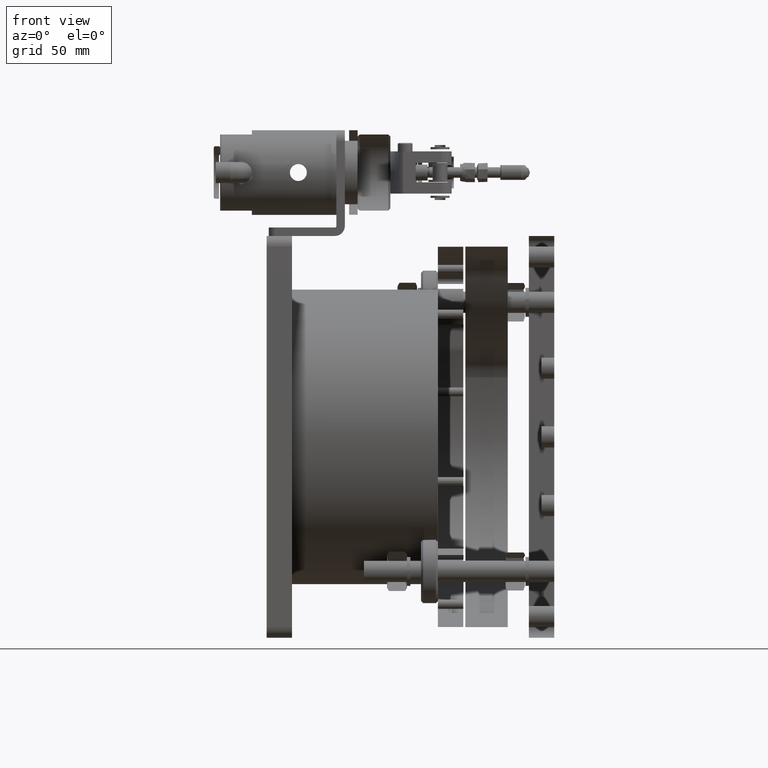
[diagram: clean part render]
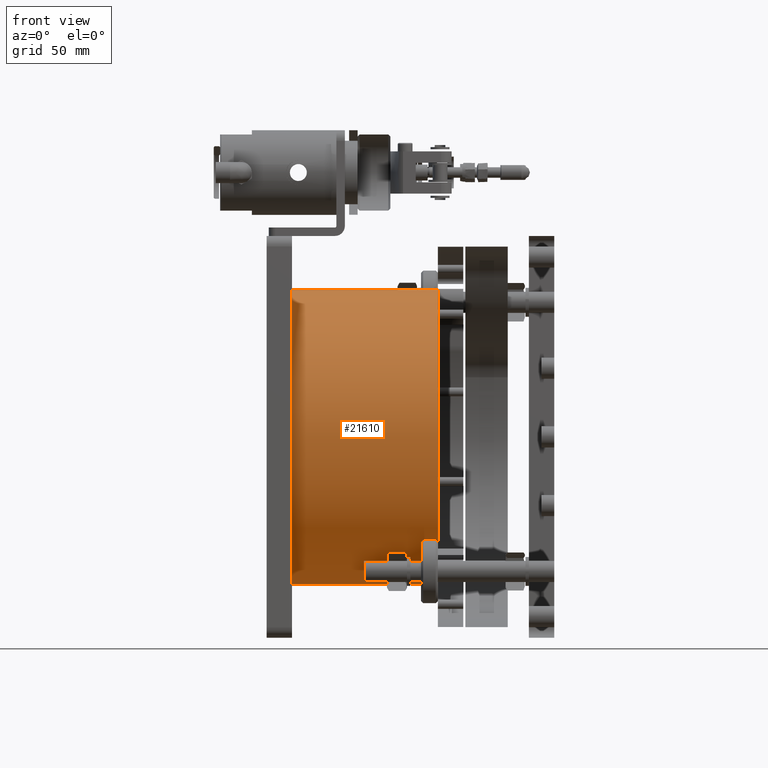
[diagram: same view with one face highlighted and labeled with its STEP entity id]
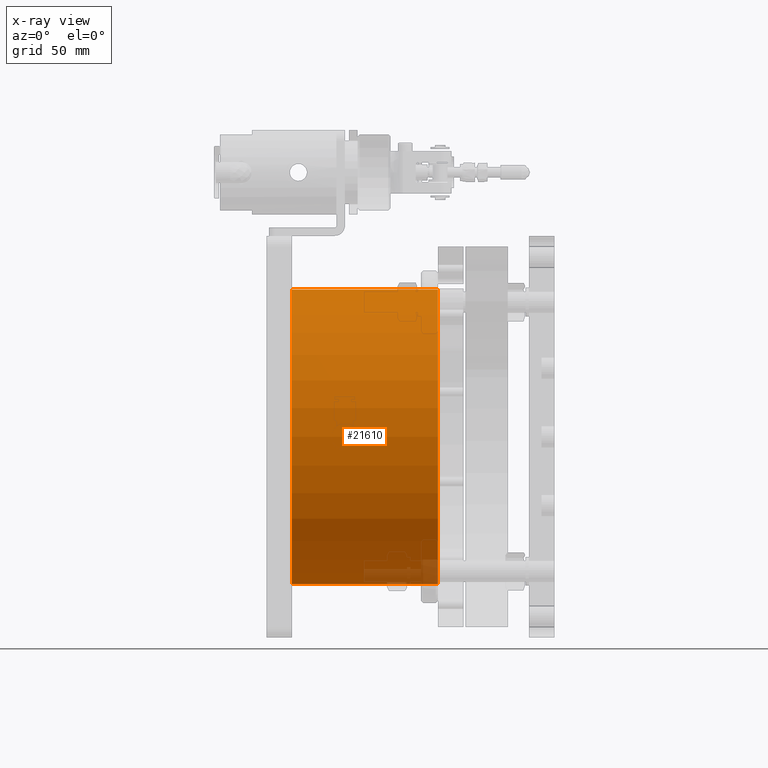
[diagram: x-ray of the same camera — body ghosted, the highlighted face saturated]
A machine part, front view. The second image highlights one B-rep face of the part: STEP entity #21610.
The next image is the same camera in x-ray: the body ghosted, the highlighted face saturated — about 3% of this face is hidden behind the body in this view.
In plain terms, the highlighted cylindrical surface (bore or boss wall) has radius 69.65 mm, axis along (-1, 0, 0).
Its self-contained STEP definition (entity closure, byte-faithful):
#166 = EDGE_LOOP ( 'NONE', ( #16174, #18696 ) ) ;
#364 = CARTESIAN_POINT ( 'NONE',  ( 458.7107269345173677, 69.56268206913080121, 606.5430019710622673 ) ) ;
#573 = CARTESIAN_POINT ( 'NONE',  ( 461.7705082004205792, 69.54107988252708594, 606.1364588037201884 ) ) ;
#628 = DIRECTION ( 'NONE',  ( -1.000000000000000000, 3.081487911019162039E-33, 3.473364927200044862E-17 ) ) ;
#1182 = EDGE_CURVE ( 'NONE', #5997, #10519, #6659, .T. ) ;
#1188 = CARTESIAN_POINT ( 'NONE',  ( 461.7759604881968016, 69.54116265385403040, 613.9329564411685851 ) ) ;
#1298 = CARTESIAN_POINT ( 'NONE',  ( 464.2249030222703254, 69.62244636472759396, 612.0546485525584330 ) ) ;
#1804 = CARTESIAN_POINT ( 'NONE',  ( 464.7315486138145957, 69.65000000000003411, 610.0354284903502275 ) ) ;
#1906 = CARTESIAN_POINT ( 'NONE',  ( 456.7315486138145957, 69.65000000000003411, 609.5046093735677459 ) ) ;
#3058 = CARTESIAN_POINT ( 'NONE',  ( 456.7315486138146525, 69.65000000000006253, 610.5673597601049778 ) ) ;
#3160 = CARTESIAN_POINT ( 'NONE',  ( 504.7315486138145388, 1.366094737331735902E-14, 610.0354284903502275 ) ) ;
#3269 = CARTESIAN_POINT ( 'NONE',  ( 459.6925750916799416, 69.54108337551660668, 613.9343222146358130 ) ) ;
#3525 = ORIENTED_EDGE ( 'NONE', *, *, #14872, .T. ) ;
#3671 = CARTESIAN_POINT ( 'NONE',  ( 464.7315486138145957, 69.65000000000006253, 609.5050446476731167 ) ) ;
#4247 = DIRECTION ( 'NONE',  ( 0.000000000000000000, 0.000000000000000000, 1.000000000000000000 ) ) ;
#4462 = B_SPLINE_CURVE_WITH_KNOTS ( 'NONE', 3,
 ( #12115, #1906, #17004, #5426, #19094, #13665, #364, #20418, #18878, #7104, #573, #12219, #8672, #5229, #7330, #10661, #3671, #1804 ),
 .UNSPECIFIED., .F., .F.,
 ( 4, 2, 2, 2, 2, 2, 2, 2, 4 ),
 ( 0.000000000000000000, 0.1250000000000000000, 0.2500000000000000000, 0.3750000000000000000, 0.5000000000000000000, 0.6250000000000000000, 0.7500000000000000000, 0.8750000000000000000, 1.000000000000000000 ),
 .UNSPECIFIED. ) ;
#4503 = CARTESIAN_POINT ( 'NONE',  ( 458.7129614740324541, 69.56261419288493641, 613.5291880650295298 ) ) ;
#4708 = CARTESIAN_POINT ( 'NONE',  ( 456.7315486138145957, 69.65000000000003411, 610.0354284903502275 ) ) ;
#5229 = CARTESIAN_POINT ( 'NONE',  ( 463.9347272166014022, 69.60777354016227036, 607.5815818212807926 ) ) ;
#5426 = CARTESIAN_POINT ( 'NONE',  ( 457.2395689996089345, 69.62237610346046779, 608.0137320949758077 ) ) ;
#5997 = VERTEX_POINT ( 'NONE', #20456 ) ;
#6123 = CARTESIAN_POINT ( 'NONE',  ( 435.7315486138146525, 1.366094737331735902E-14, 610.0354284903502275 ) ) ;
#6161 = CARTESIAN_POINT ( 'NONE',  ( 463.9365191396012165, 69.60786142851843294, 612.4867678551266863 ) ) ;
#6659 = B_SPLINE_CURVE_WITH_KNOTS ( 'NONE', 3,
 ( #19813, #19698, #14709, #1298, #6161, #21573, #8054, #1188, #21784, #11392, #3269, #4503, #11603, #11714, #13159, #16595, #3058, #4708 ),
 .UNSPECIFIED., .F., .F.,
 ( 4, 2, 2, 2, 2, 2, 2, 2, 4 ),
 ( 0.000000000000000000, 0.1250000000000000000, 0.2500000000000000000, 0.3750000000000000000, 0.5000000000000000000, 0.6250000000000000000, 0.7500000000000000000, 0.8750000000000000000, 1.000000000000000000 ),
 .UNSPECIFIED. ) ;
#6786 = VERTEX_POINT ( 'NONE', #8345 ) ;
#7104 = CARTESIAN_POINT ( 'NONE',  ( 461.2602211423582617, 69.53503017819916465, 606.0351687256884361 ) ) ;
#7330 = CARTESIAN_POINT ( 'NONE',  ( 464.2241344945991273, 69.62240752897122320, 608.0147600553182201 ) ) ;
#7415 = AXIS2_PLACEMENT_3D ( 'NONE', #6123, #21431, #4247 ) ;
#8054 = CARTESIAN_POINT ( 'NONE',  ( 462.7557695847331729, 69.56277872646515448, 613.5259647285291749 ) ) ;
#8345 = CARTESIAN_POINT ( 'NONE',  ( 435.7315486138146525, 1.366094737331735902E-14, 679.6854284903502048 ) ) ;
#8597 = DIRECTION ( 'NONE',  ( 0.000000000000000000, 0.000000000000000000, 1.000000000000000000 ) ) ;
#8672 = CARTESIAN_POINT ( 'NONE',  ( 463.1840034886273543, 69.57726944231112043, 606.8312004014248942 ) ) ;
#8722 = FACE_OUTER_BOUND ( 'NONE', #13064, .T. ) ;
#8820 = AXIS2_PLACEMENT_3D ( 'NONE', #3160, #18815, #8597 ) ;
#8956 = EDGE_LOOP ( 'NONE', ( #16963 ) ) ;
#10519 = VERTEX_POINT ( 'NONE', #11904 ) ;
#10542 = EDGE_CURVE ( 'NONE', #10519, #5997, #4462, .T. ) ;
#10661 = CARTESIAN_POINT ( 'NONE',  ( 464.6300657899714110, 69.64395023340567548, 608.9947907333014427 ) ) ;
#10711 = DIRECTION ( 'NONE',  ( 0.000000000000000000, 0.000000000000000000, 1.000000000000000000 ) ) ;
#11392 = CARTESIAN_POINT ( 'NONE',  ( 460.2042546163962129, 69.53501608991668093, 614.0359331625047616 ) ) ;
#11603 = CARTESIAN_POINT ( 'NONE',  ( 458.2800424126733105, 69.57723875298243854, 613.2402275875280111 ) ) ;
#11664 = CIRCLE ( 'NONE', #7415, 69.64999999999999147 ) ;
#11714 = CARTESIAN_POINT ( 'NONE',  ( 457.5301939664375368, 69.60769159428154751, 612.4914742265237919 ) ) ;
#11904 = CARTESIAN_POINT ( 'NONE',  ( 456.7315486138145957, 69.65000000000003411, 610.0354284903502275 ) ) ;
#12115 = CARTESIAN_POINT ( 'NONE',  ( 456.7315486138145957, 69.65000000000003411, 610.0354284903502275 ) ) ;
#12219 = CARTESIAN_POINT ( 'NONE',  ( 462.7510494973727759, 69.56263746696568262, 606.5421170978786449 ) ) ;
#12486 = CYLINDRICAL_SURFACE ( 'NONE', #15788, 69.64999999999999147 ) ;
#12599 = FACE_OUTER_BOUND ( 'NONE', #8956, .T. ) ;
#13064 = EDGE_LOOP ( 'NONE', ( #3525 ) ) ;
#13159 = CARTESIAN_POINT ( 'NONE',  ( 457.2418151414664749, 69.62226116697009104, 612.0614251204896163 ) ) ;
#13665 = CARTESIAN_POINT ( 'NONE',  ( 458.2784879026391422, 69.57729242891504384, 606.8317536555671268 ) ) ;
#14255 = CARTESIAN_POINT ( 'NONE',  ( 504.7315486138145388, 1.366094737331735902E-14, 610.0354284903502275 ) ) ;
#14709 = CARTESIAN_POINT ( 'NONE',  ( 464.6301219376462655, 69.64395516701077327, 611.0755227958784417 ) ) ;
#14782 = VERTEX_POINT ( 'NONE', #21538 ) ;
#14872 = EDGE_CURVE ( 'NONE', #6786, #6786, #11664, .T. ) ;
#15788 = AXIS2_PLACEMENT_3D ( 'NONE', #14255, #628, #10711 ) ;
#16174 = ORIENTED_EDGE ( 'NONE', *, *, #10542, .T. ) ;
#16595 = CARTESIAN_POINT ( 'NONE',  ( 456.8336019193450284, 69.64391497873735659, 611.0789891170163628 ) ) ;
#16778 = EDGE_CURVE ( 'NONE', #14782, #14782, #18762, .T. ) ;
#16963 = ORIENTED_EDGE ( 'NONE', *, *, #16778, .T. ) ;
#17004 = CARTESIAN_POINT ( 'NONE',  ( 456.8334636544464047, 69.64392654869446631, 608.9933126201962068 ) ) ;
#18696 = ORIENTED_EDGE ( 'NONE', *, *, #1182, .T. ) ;
#18762 = CIRCLE ( 'NONE', #8820, 69.64999999999999147 ) ;
#18815 = DIRECTION ( 'NONE',  ( -1.000000000000000000, 3.081487911019162039E-33, 3.473364927200044862E-17 ) ) ;
#18878 = CARTESIAN_POINT ( 'NONE',  ( 460.2000189100677403, 69.53506009344579297, 606.0356887652279738 ) ) ;
#19094 = CARTESIAN_POINT ( 'NONE',  ( 457.5287918206464610, 69.60775803140721507, 607.5812125204640779 ) ) ;
#19698 = CARTESIAN_POINT ( 'NONE',  ( 464.7315486138146525, 69.65000000000003411, 610.5654044678205992 ) ) ;
#19813 = CARTESIAN_POINT ( 'NONE',  ( 464.7315486138145957, 69.65000000000003411, 610.0354284903502275 ) ) ;
#20418 = CARTESIAN_POINT ( 'NONE',  ( 459.6899187769297441, 69.54112308834496048, 606.1372264361648377 ) ) ;
#20456 = CARTESIAN_POINT ( 'NONE',  ( 464.7315486138145957, 69.65000000000003411, 610.0354284903502275 ) ) ;
#20568 = FACE_BOUND ( 'NONE', #166, .T. ) ;
#21431 = DIRECTION ( 'NONE',  ( 1.000000000000000000, -3.081487911019162039E-33, -3.473364927200044862E-17 ) ) ;
#21538 = CARTESIAN_POINT ( 'NONE',  ( 504.7315486138145388, 1.366094737331735902E-14, 679.6854284903502048 ) ) ;
#21573 = CARTESIAN_POINT ( 'NONE',  ( 463.1873911465300466, 69.57739211683140468, 613.2369817936412346 ) ) ;
#21610 = ADVANCED_FACE ( 'NONE', ( #12599, #20568, #8722 ), #12486, .T. ) ;
#21784 = CARTESIAN_POINT ( 'NONE',  ( 461.2653933585370396, 69.53507430666108746, 614.0349211361773314 ) ) ;